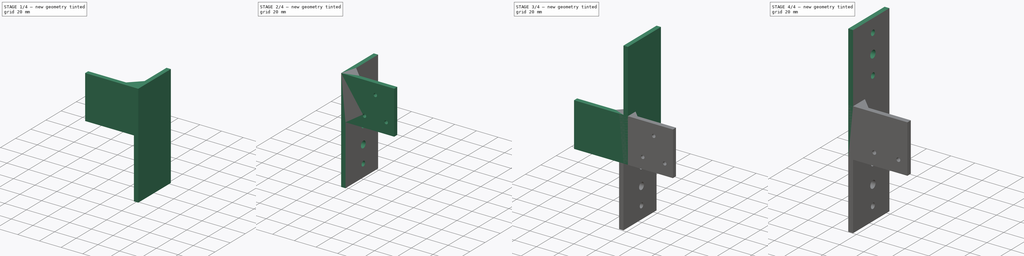
[diagram: build sequence overview — one tinted view per stage of 4, left to right]
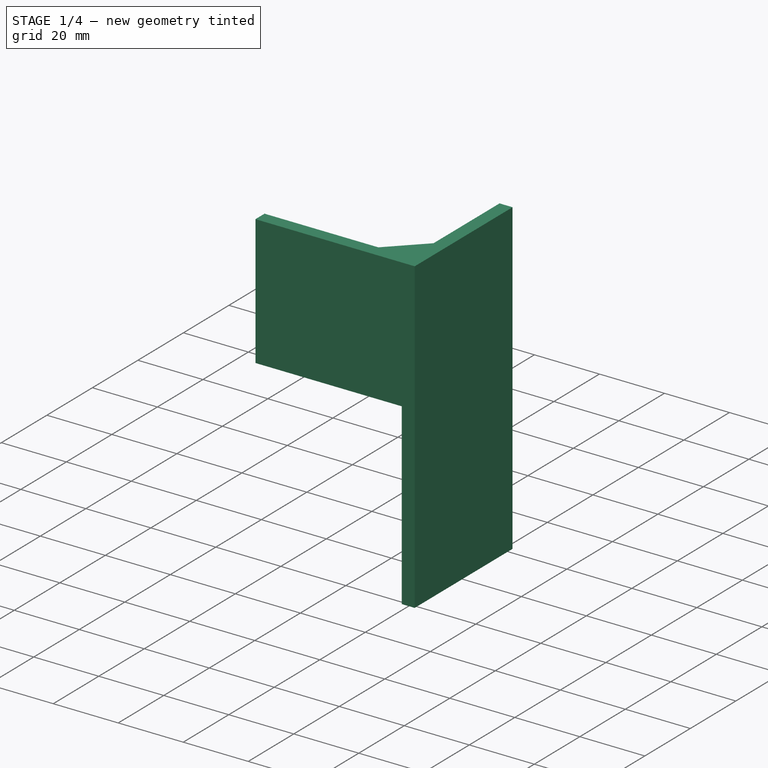
[diagram: stage 1 of 4 — iso view after this stage's code; geometry added in this stage tinted green]
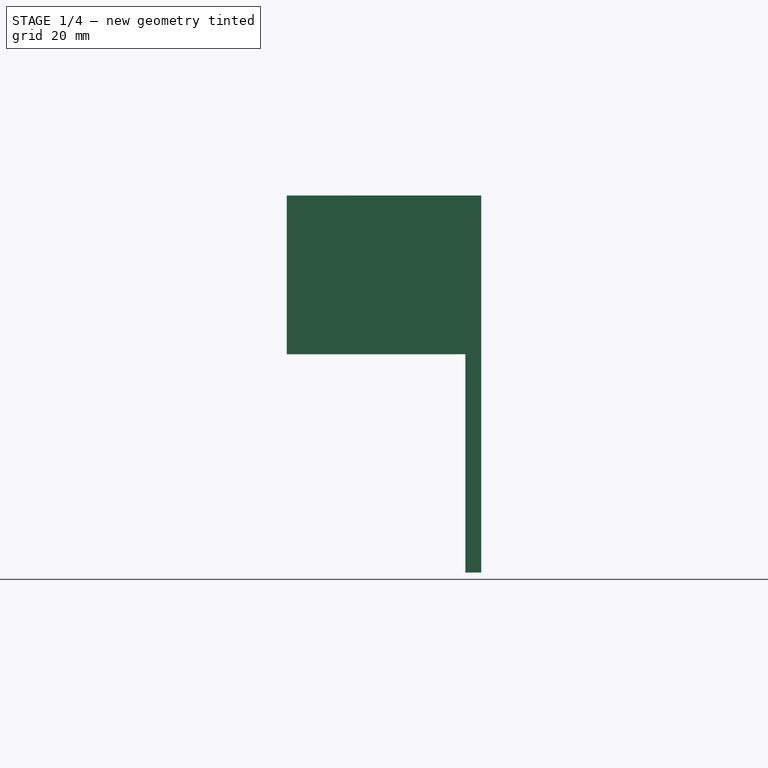
[diagram: stage 1 of 4 — front view after this stage's code; geometry added in this stage tinted green]
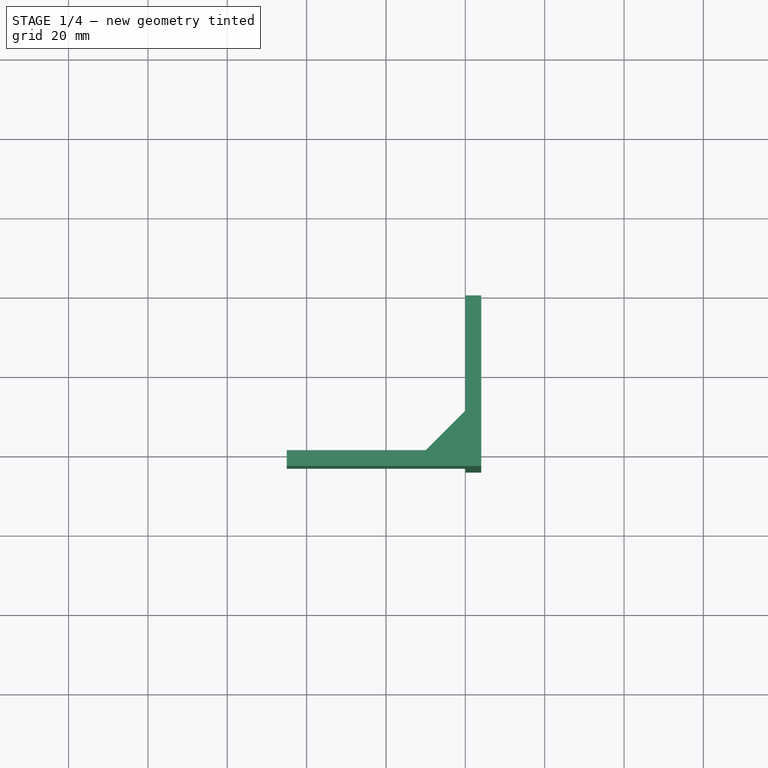
[diagram: stage 1 of 4 — top view after this stage's code; geometry added in this stage tinted green]
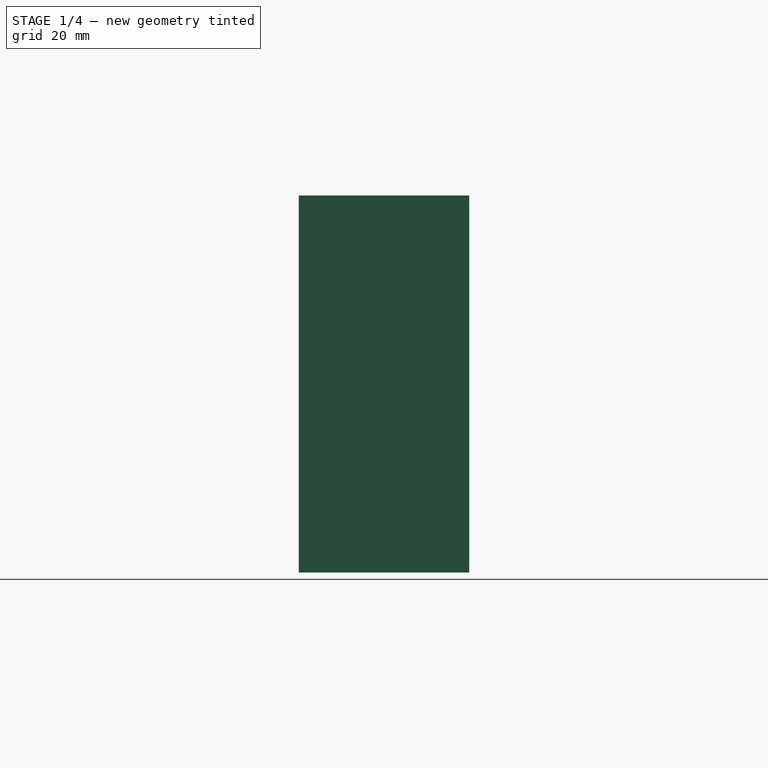
[diagram: stage 1 of 4 — right view after this stage's code; geometry added in this stage tinted green]
FCSTD DOCUMENT  (FreeCAD 1.0R39319 (Git))
Label: BracketsV3
License: All rights reserved
objects: Sketcher::SketchObject×8, PartDesign::Pad×5, PartDesign::Pocket×4, PartDesign::Body×2, Part::Mirroring×2
note: 47 computed .brp shape members not serialized (recipe doc carries the construction recipe); baked Part::Feature solids carry a one-line shape summary decoded from their .brp

FEATURE [PartDesign::Body] BracketBody  label="TopBracketLeftBody"
  AllowCompound = false
  Group = -> [LProfileSketch,LProfilePad,RailExtensionSketch,RailExtensionPad,FrameHolesSketch002,FrameHolesPocket,RailHolesSketch,RailHolesPocket]
  Origin = -> Origin
  Tip = -> RailHolesPocket
FEATURE [Sketcher::SketchObject] BottomLProfileSketch
  ArcFitTolerance = 1e-06
  AttachmentSupport = -> [XY_Plane001]
  FullyConstrained = false
  MakeInternals = false
  MapMode = 5
  sketch-geometry (9):
    g0: LineSegment StartX=-45 StartY=-4 StartZ=0 EndX=-45 EndY=0 EndZ=0
    g1: LineSegment StartX=-45 StartY=0 StartZ=0 EndX=-10 EndY=0 EndZ=0
    g2: LineSegment StartX=-10 StartY=0 StartZ=0 EndX=0 EndY=10 EndZ=0
    g3: LineSegment StartX=0 StartY=10 StartZ=0 EndX=0 EndY=39 EndZ=0
    g4: LineSegment StartX=0 StartY=39 StartZ=0 EndX=4 EndY=39 EndZ=0
    g5: LineSegment StartX=4 StartY=39 StartZ=0 EndX=4 EndY=0 EndZ=0
    g6: LineSegment StartX=4 StartY=0 StartZ=0 EndX=4 EndY=-4 EndZ=0
    g7: LineSegment StartX=4 StartY=-4 StartZ=0 EndX=0 EndY=-4 EndZ=0
    g8: LineSegment StartX=0 StartY=-4 StartZ=0 EndX=-45 EndY=-4 EndZ=0
  constraints (25):
    c: Coincident(g0,g1)
    c: Coincident(g1,g2)
    c: Coincident(g2,g3)
    c: Coincident(g3,g4)
    c: Coincident(g4,g5)
    c: Coincident(g5,g6)
    c: Coincident(g6,g7)
    c: Coincident(g7,g8)
    c: Coincident(g8,g0)
    c: Vertical(g0)
    c: Horizontal(g1)
    c: Vertical(g3)
    c: Horizontal(g4)
    c: Vertical(g5)
    c: Vertical(g6)
    c: Horizontal(g7)
    c: Horizontal(g8)
    c: DistanceX(g0) = -45
    c: DistanceY(g0) = -4
    c: DistanceY(g0,g0) = 4
    c: DistanceY(g4) = 39
    c: DistanceX(g5) = 4
    c: DistanceX(g3,g5) = 4
    c: DistanceX(g1) = -10
    c: DistanceY(g2) = 10
FEATURE [PartDesign::Pad] BottomLProfilePad
  Direction = (0,0,1)
  Length = 40
  Length2 = 10
  Profile = -> BottomLProfileSketch
  Suppressed = false
  Type = 0
FEATURE [PartDesign::Pad] BottomLProfilePad001
  BaseFeature = -> BottomLProfilePad
  Direction = (0,0,1)
  Length = 40
  Length2 = 10
  Profile = -> BottomLProfileSketch
  Refine = true
  Suppressed = false
  Type = 0
FEATURE [Sketcher::SketchObject] BottomRailExtensionSketch
  ArcFitTolerance = 1e-06
  AttachmentOffset = pos=(4,0,0) rot=(0,0,1;3.14159rad)
  AttachmentSupport = -> [BottomLProfilePad001]
  FullyConstrained = true
  MakeInternals = false
  MapMode = 5
  Placement = pos=(4,0,0) rot=(0,-1,0;3.14159rad)
  sketch-geometry (4):
    g0: LineSegment StartX=0 StartY=-4 StartZ=0 EndX=4 EndY=-4 EndZ=0
    g1: LineSegment StartX=4 StartY=-4 StartZ=0 EndX=4 EndY=39 EndZ=0
    g2: LineSegment StartX=4 StartY=39 StartZ=0 EndX=0 EndY=39 EndZ=0
    g3: LineSegment StartX=0 StartY=39 StartZ=0 EndX=0 EndY=-4 EndZ=0
  constraints (12):
    c: Coincident(g0,g1)
    c: Coincident(g1,g2)
    c: Coincident(g2,g3)
    c: Coincident(g3,g0)
    c: Horizontal(g0)
    c: Vertical(g1)
    c: Horizontal(g2)
    c: Vertical(g3)
    c: DistanceX(g0) = 0
    c: DistanceY(g0) = -4
    c: DistanceX(g0) = 4
    c: DistanceY(g1) = 43
FEATURE [PartDesign::Pad] BottomRailExtensionPad
  BaseFeature = -> BottomLProfilePad001
  Direction = (0,0,-1)
  Length = 55
  Length2 = 10
  Profile = -> BottomRailExtensionSketch
  Refine = true
  Suppressed = false
  Type = 0
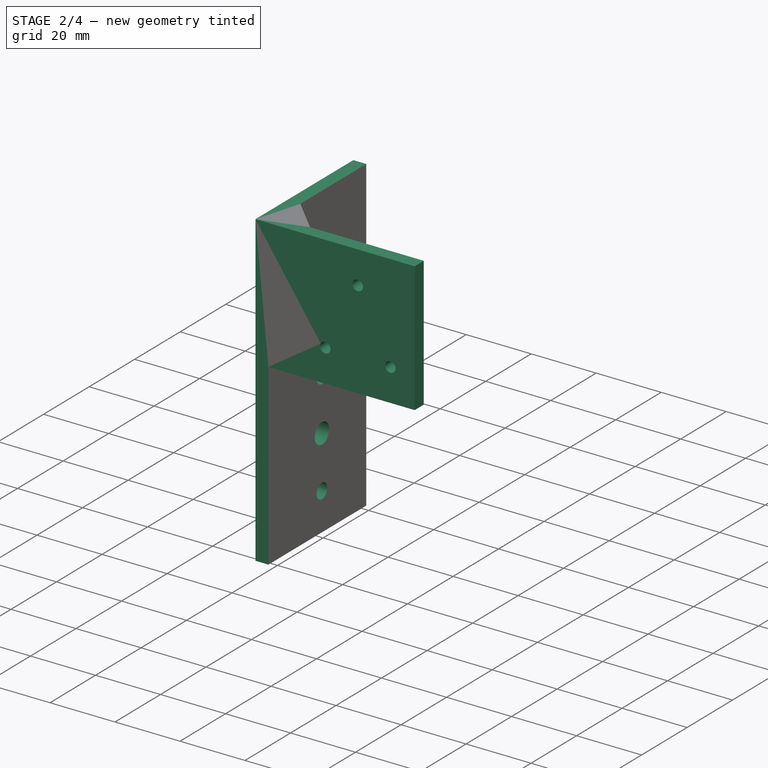
[diagram: stage 2 of 4 — iso view after this stage's code; geometry added in this stage tinted green]
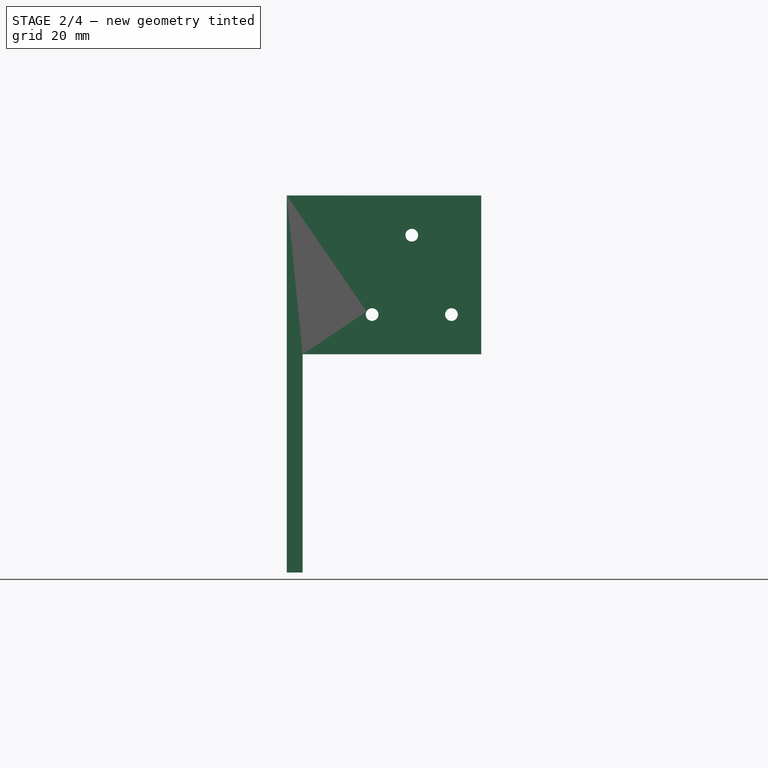
[diagram: stage 2 of 4 — front view after this stage's code; geometry added in this stage tinted green]
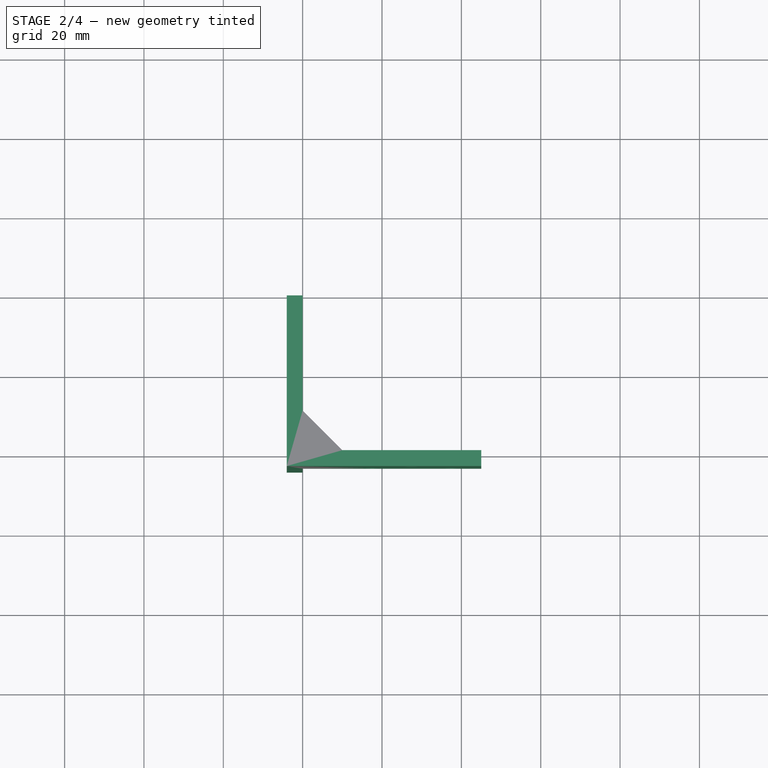
[diagram: stage 2 of 4 — top view after this stage's code; geometry added in this stage tinted green]
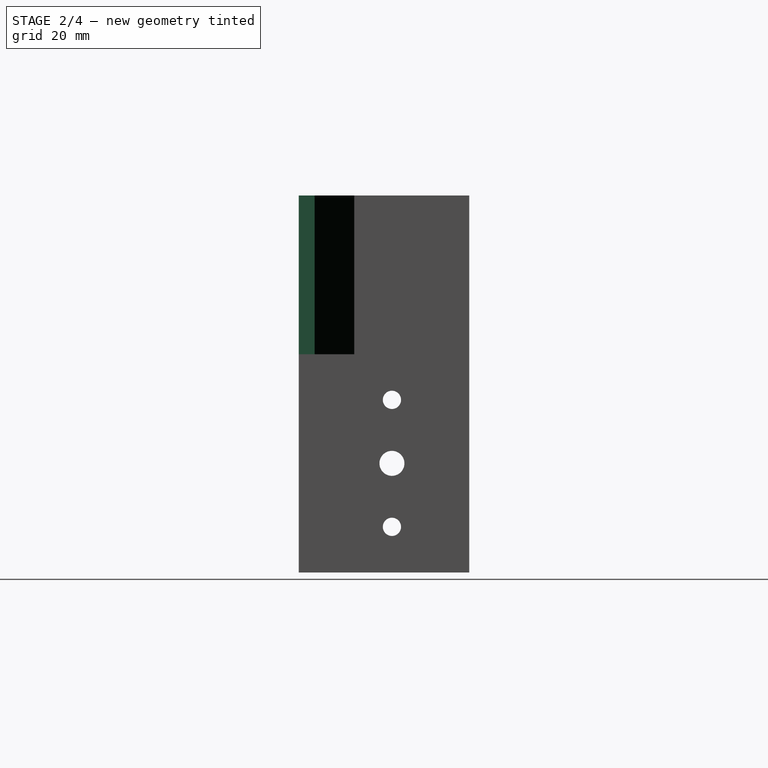
[diagram: stage 2 of 4 — right view after this stage's code; geometry added in this stage tinted green]
FEATURE [Sketcher::SketchObject] BottomFrameHolesSketch
  ArcFitTolerance = 1e-06
  AttachmentSupport = -> [BottomRailExtensionPad]
  ExternalGeometry = -> [BottomRailExtensionPad]
  FullyConstrained = true
  MakeInternals = false
  MapMode = 5
  Placement = pos=(0,0,0) rot=(0,0.707107,0.707107;3.14159rad)
  sketch-geometry (3):
    g0: Circle CenterX=17.5 CenterY=10 CenterZ=0 NormalX=0 NormalY=0 NormalZ=1 AngleXU=0 Radius=1.6
    g1: Circle CenterX=37.5 CenterY=10 CenterZ=0 NormalX=0 NormalY=0 NormalZ=1 AngleXU=0 Radius=1.6
    g2: Circle CenterX=27.5 CenterY=30 CenterZ=0 NormalX=0 NormalY=0 NormalZ=1 AngleXU=0 Radius=1.6
  constraints (9):
    c: DistanceY(g-3,g0) = 10
    c: DistanceY(g-3,g1) = 10
    c: DistanceY(g-3,g2) = 30
    c: DistanceX(g-4,g0) = -27.5
    c: DistanceX(g-4,g1) = -7.5
    c: DistanceX(g-4,g2) = -17.5
    c: Radius(g0) = 1.6
    c: Radius(g1) = 1.6
    c: Radius(g2) = 1.6
FEATURE [PartDesign::Pocket] BottomFrameHolesPocket
  BaseFeature = -> BottomRailExtensionPad
  Direction = (0,-1,2e-16)
  Length = 5
  Length2 = 5
  Profile = -> BottomFrameHolesSketch
  Suppressed = false
  Type = 1
FEATURE [Sketcher::SketchObject] BottomRailHolesSketch
  ArcFitTolerance = 1e-06
  AttachmentSupport = -> [BottomFrameHolesPocket]
  ExternalGeometry = -> [BottomFrameHolesPocket]
  FullyConstrained = true
  MakeInternals = false
  MapMode = 5
  Placement = pos=(4,0,0) rot=(0.57735,0.57735,0.57735;2.0944rad)
  sketch-geometry (3):
    g0: Circle CenterX=19.5 CenterY=-11.5 CenterZ=0 NormalX=0 NormalY=0 NormalZ=1 AngleXU=0 Radius=2.3
    g1: Circle CenterX=19.5 CenterY=-27.5 CenterZ=0 NormalX=0 NormalY=0 NormalZ=1 AngleXU=0 Radius=3.15
    g2: Circle CenterX=19.5 CenterY=-43.5 CenterZ=0 NormalX=0 NormalY=0 NormalZ=1 AngleXU=0 Radius=2.3
  constraints (9):
    c: DistanceY(g-3,g0) = 43.5
    c: DistanceY(g-3,g1) = 27.5
    c: DistanceY(g-3,g2) = 11.5
    c: DistanceX(g-4,g0) = -19.5
    c: DistanceX(g-4,g1) = -19.5
    c: DistanceX(g-4,g2) = -19.5
    c: Radius(g0) = 2.3
    c: Radius(g1) = 3.15
    c: Radius(g2) = 2.3
FEATURE [PartDesign::Pocket] BottomRailHolesPocket
  BaseFeature = -> BottomFrameHolesPocket
  Direction = (-1,0,0)
  Length = 5
  Length2 = 5
  Profile = -> BottomRailHolesSketch
  Suppressed = false
  Type = 1
FEATURE [Part::Mirroring] BottomBracketRight
  Base = (0,0,0)
  Normal = (1,0,0)
  Source = -> BottomBracketLeftBody
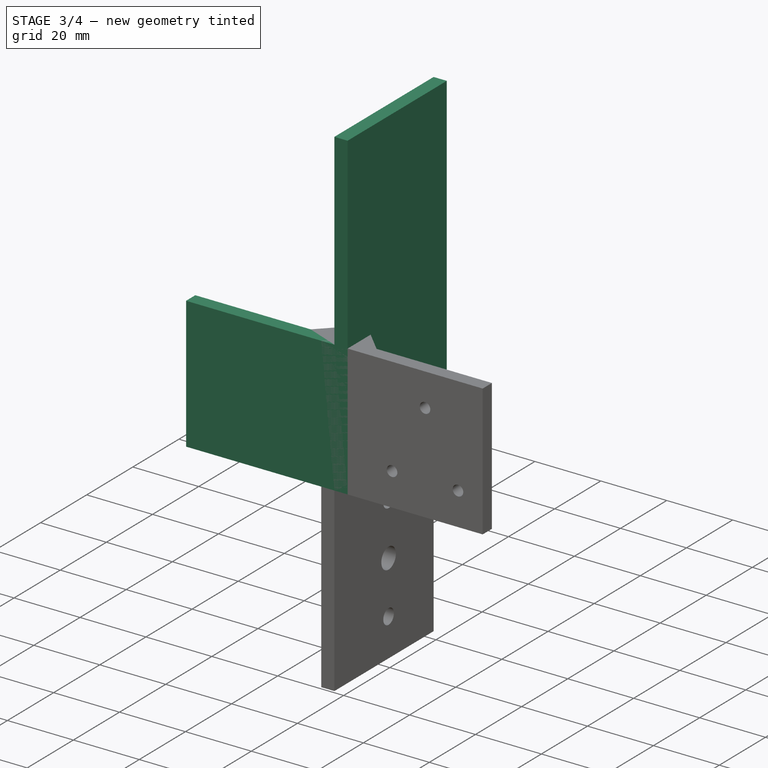
[diagram: stage 3 of 4 — iso view after this stage's code; geometry added in this stage tinted green]
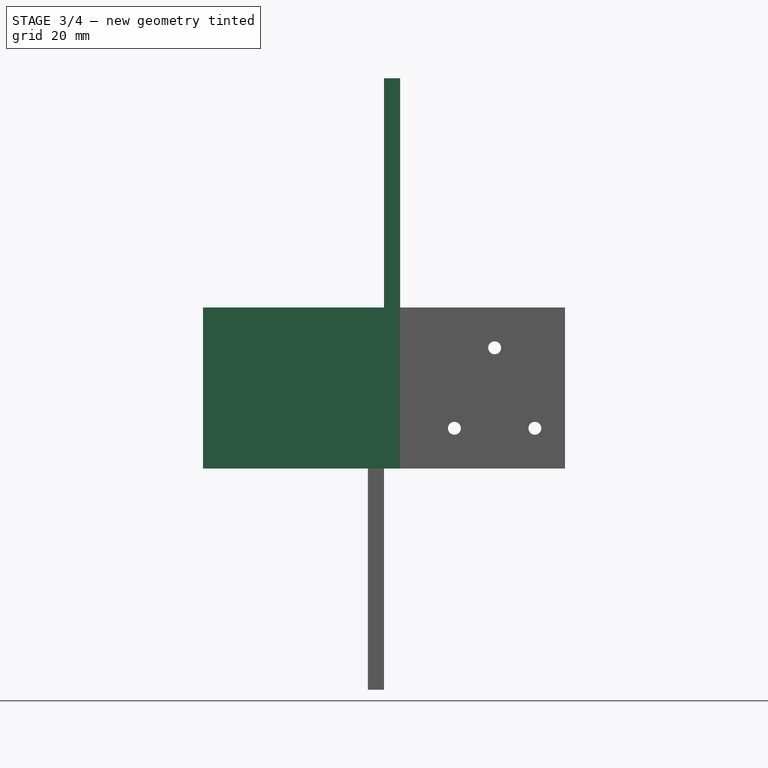
[diagram: stage 3 of 4 — front view after this stage's code; geometry added in this stage tinted green]
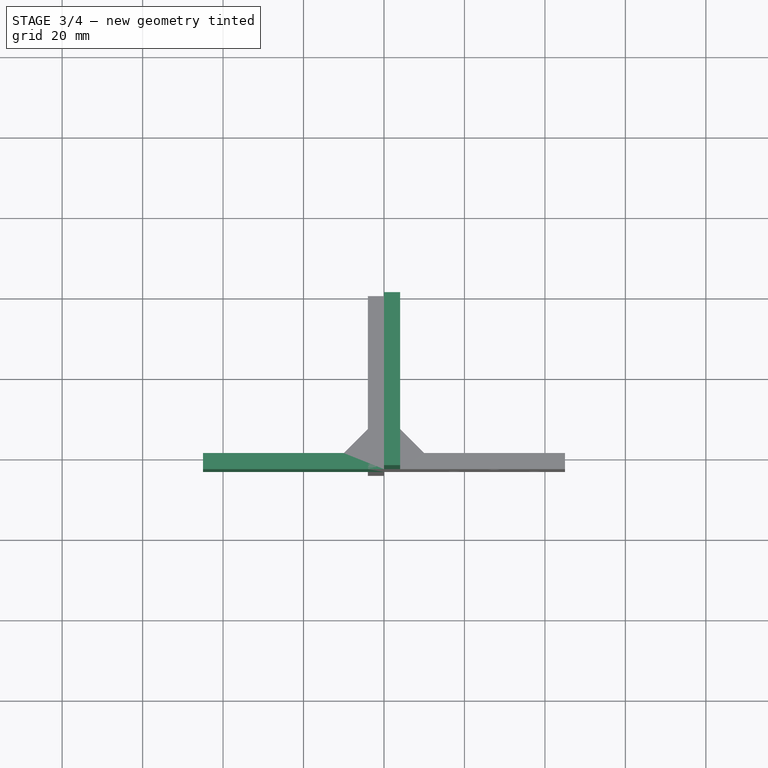
[diagram: stage 3 of 4 — top view after this stage's code; geometry added in this stage tinted green]
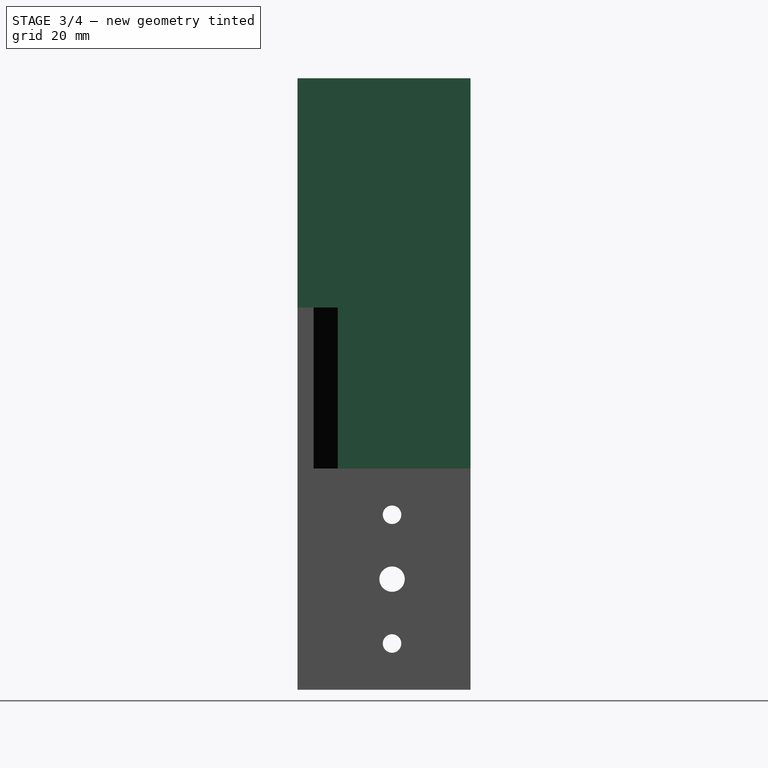
[diagram: stage 3 of 4 — right view after this stage's code; geometry added in this stage tinted green]
FEATURE [Sketcher::SketchObject] LProfileSketch
  ArcFitTolerance = 1e-06
  AttachmentSupport = -> [XY_Plane]
  FullyConstrained = true
  MakeInternals = false
  MapMode = 5
  sketch-geometry (9):
    g0: LineSegment StartX=-45 StartY=-4 StartZ=0 EndX=-45 EndY=0 EndZ=0
    g1: LineSegment StartX=-45 StartY=0 StartZ=0 EndX=-10 EndY=0 EndZ=0
    g2: LineSegment StartX=-10 StartY=0 StartZ=0 EndX=0 EndY=10 EndZ=0
    g3: LineSegment StartX=0 StartY=10 StartZ=0 EndX=0 EndY=39 EndZ=0
    g4: LineSegment StartX=0 StartY=39 StartZ=0 EndX=4 EndY=39 EndZ=0
    g5: LineSegment StartX=4 StartY=39 StartZ=0 EndX=4 EndY=0 EndZ=0
    g6: LineSegment StartX=4 StartY=0 StartZ=0 EndX=4 EndY=-4 EndZ=0
    g7: LineSegment StartX=4 StartY=-4 StartZ=0 EndX=0 EndY=-4 EndZ=0
    g8: LineSegment StartX=0 StartY=-4 StartZ=0 EndX=-45 EndY=-4 EndZ=0
  constraints (27):
    c: Coincident(g0,g1)
    c: Coincident(g1,g2)
    c: Coincident(g2,g3)
    c: Coincident(g3,g4)
    c: Coincident(g4,g5)
    c: Coincident(g5,g6)
    c: Coincident(g6,g7)
    c: Coincident(g7,g8)
    c: Coincident(g8,g0)
    c: Vertical(g0)
    c: Horizontal(g1)
    c: Vertical(g3)
    c: Horizontal(g4)
    c: Vertical(g5)
    c: Vertical(g6)
    c: Horizontal(g7)
    c: Horizontal(g8)
    c: DistanceX(g0) = -45
    c: DistanceY(g0) = -4
    c: Distance(g0) = 4
    c: Distance(g8) = 45
    c: Distance(g5) = 39
    c: Distance(g4) = 4
    c: Distance(g1) = 35
    c: Distance(g3) = 29
    c: Distance(g6) = 4
    c: Distance(g7) = 4
FEATURE [PartDesign::Pad] LProfilePad
  Direction = (0,0,1)
  Length = 40
  Length2 = 10
  Profile = -> LProfileSketch
  Refine = true
  Suppressed = false
  Type = 0
FEATURE [Sketcher::SketchObject] RailExtensionSketch
  ArcFitTolerance = 1e-06
  AttachmentSupport = -> [LProfilePad]
  FullyConstrained = true
  MakeInternals = false
  MapMode = 5
  Placement = pos=(0,0,40) rot=(0,0,1;0rad)
  sketch-geometry (4):
    g0: LineSegment StartX=0 StartY=-4 StartZ=0 EndX=4 EndY=-4 EndZ=0
    g1: LineSegment StartX=4 StartY=-4 StartZ=0 EndX=4 EndY=39 EndZ=0
    g2: LineSegment StartX=4 StartY=39 StartZ=0 EndX=0 EndY=39 EndZ=0
    g3: LineSegment StartX=0 StartY=39 StartZ=0 EndX=0 EndY=-4 EndZ=0
  constraints (12):
    c: Coincident(g0,g1)
    c: Coincident(g1,g2)
    c: Coincident(g2,g3)
    c: Coincident(g3,g0)
    c: Horizontal(g0)
    c: Vertical(g1)
    c: Horizontal(g2)
    c: Vertical(g3)
    c: DistanceX(g0) = 0
    c: DistanceY(g0) = -4
    c: Distance(g0) = 4
    c: Distance(g1) = 43
FEATURE [PartDesign::Pad] RailExtensionPad
  BaseFeature = -> LProfilePad
  Direction = (0,0,1)
  Length = 57
  Length2 = 10
  Profile = -> RailExtensionSketch
  Refine = true
  Suppressed = false
  Type = 0
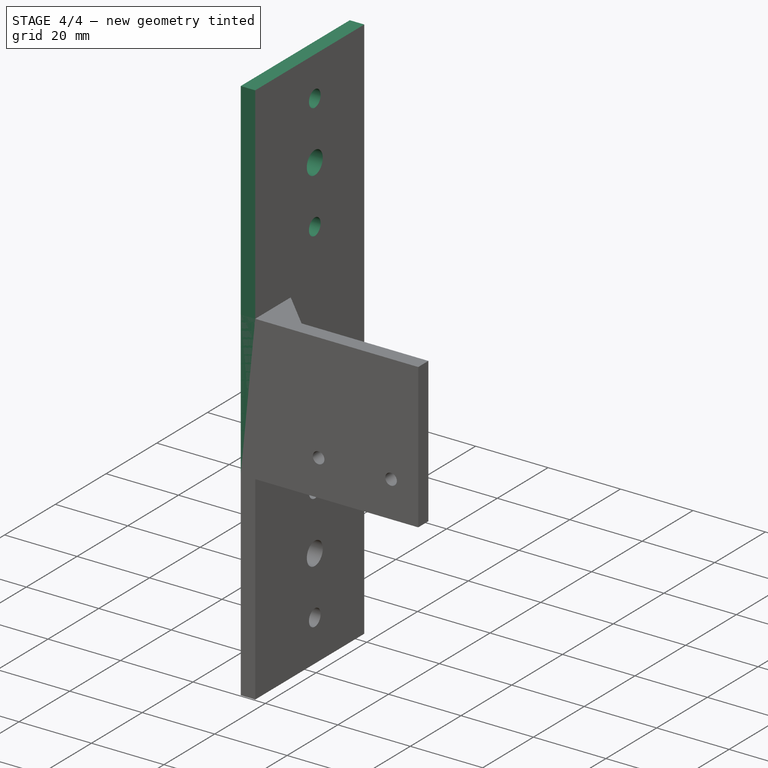
[diagram: stage 4 of 4 — iso view after this stage's code; geometry added in this stage tinted green]
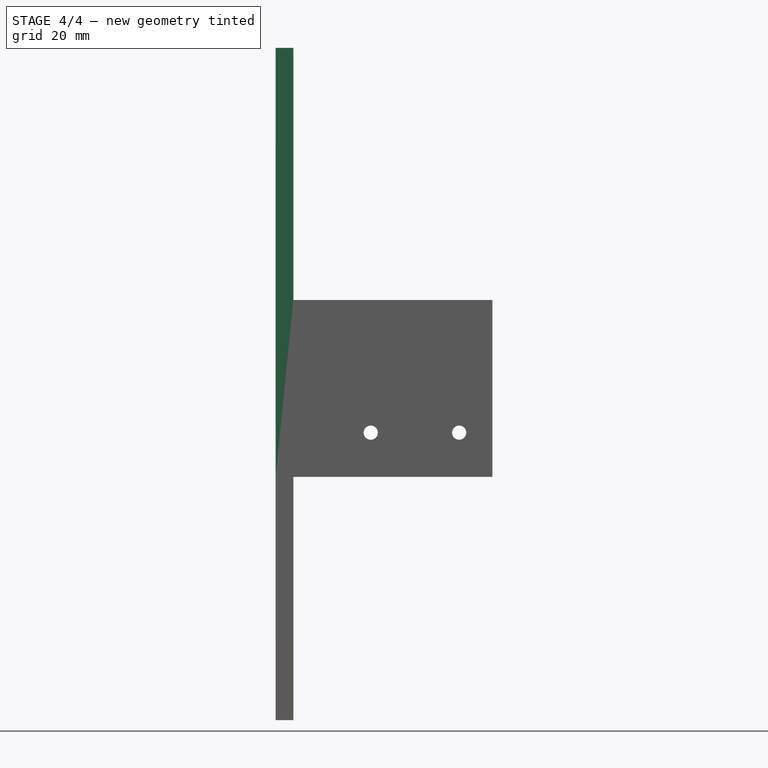
[diagram: stage 4 of 4 — front view after this stage's code; geometry added in this stage tinted green]
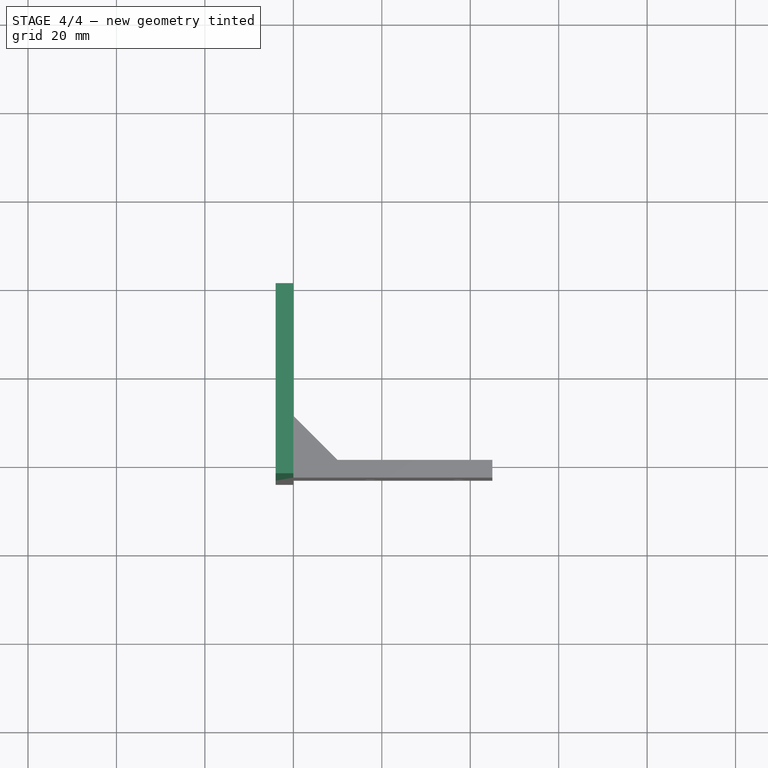
[diagram: stage 4 of 4 — top view after this stage's code; geometry added in this stage tinted green]
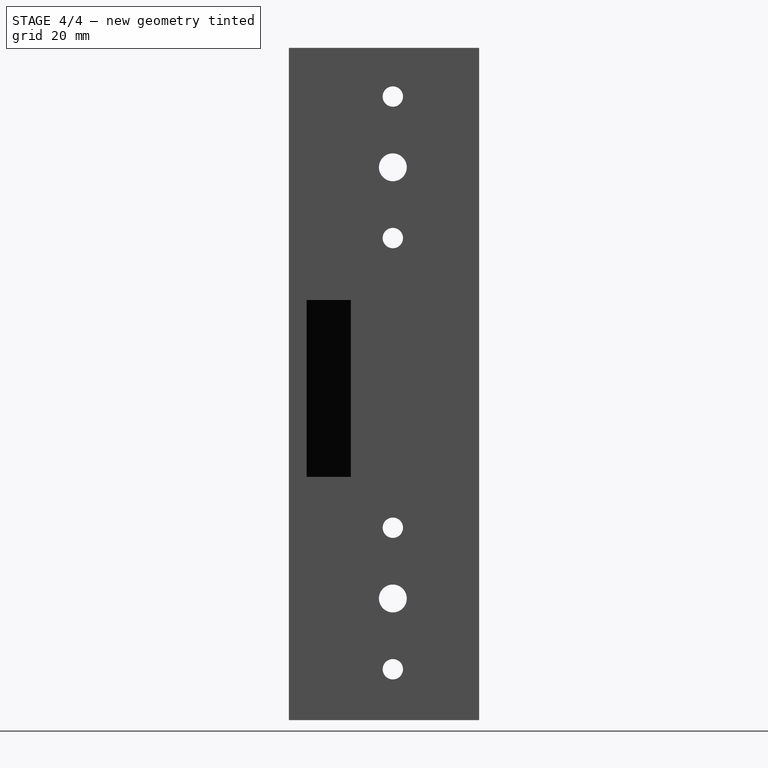
[diagram: stage 4 of 4 — right view after this stage's code; geometry added in this stage tinted green]
FEATURE [Sketcher::SketchObject] FrameHolesSketch002
  ArcFitTolerance = 1e-06
  AttachmentOffset = pos=(0,10,0) rot=(0,0,1;0rad)
  AttachmentSupport = -> [RailExtensionPad]
  ExternalGeometry = -> [LProfilePad]
  FullyConstrained = true
  MakeInternals = false
  MapMode = 5
  Placement = pos=(0,-4,10) rot=(1,0,0;1.5708rad)
  sketch-geometry (2):
    g0: Circle CenterX=-37.5 CenterY=0 CenterZ=0 NormalX=0 NormalY=0 NormalZ=1 AngleXU=0 Radius=1.6
    g1: Circle CenterX=-17.5 CenterY=0 CenterZ=0 NormalX=0 NormalY=0 NormalZ=1 AngleXU=0 Radius=1.6
  constraints (6):
    c: DistanceX(g-3,g0) = 7.5
    c: DistanceX(g-3,g1) = 27.5
    c: DistanceY(g-4,g0) = 10
    c: DistanceY(g-4,g1) = 10
    c: Radius(g0) = 1.6
    c: Radius(g1) = 1.6
FEATURE [PartDesign::Pocket] FrameHolesPocket
  BaseFeature = -> RailExtensionPad
  Direction = (0,1,-2e-16)
  Length = 5
  Length2 = 5
  Profile = -> FrameHolesSketch002
  Suppressed = false
  Type = 1
FEATURE [Sketcher::SketchObject] RailHolesSketch
  ArcFitTolerance = 1e-06
  AttachmentSupport = -> [RailExtensionPad]
  ExternalGeometry = -> [RailExtensionPad]
  FullyConstrained = true
  MakeInternals = false
  MapMode = 5
  Placement = pos=(0,0,0) rot=(0.57735,-0.57735,-0.57735;2.0944rad)
  sketch-geometry (3):
    g0: Circle CenterX=-19.5 CenterY=54 CenterZ=0 NormalX=0 NormalY=0 NormalZ=1 AngleXU=0 Radius=2.3
    g1: Circle CenterX=-19.5 CenterY=70 CenterZ=0 NormalX=0 NormalY=0 NormalZ=1 AngleXU=0 Radius=3.15
    g2: Circle CenterX=-19.5 CenterY=86 CenterZ=0 NormalX=0 NormalY=0 NormalZ=1 AngleXU=0 Radius=2.3
  constraints (9):
    c: DistanceY(g-3,g0) = 54
    c: DistanceY(g-3,g1) = 70
    c: DistanceY(g-3,g2) = 86
    c: DistanceX(g-4,g0) = 19.5
    c: DistanceX(g-4,g1) = 19.5
    c: DistanceX(g-4,g2) = 19.5
    c: Radius(g0) = 2.3
    c: Radius(g1) = 3.15
    c: Radius(g2) = 2.3
FEATURE [PartDesign::Pocket] RailHolesPocket
  BaseFeature = -> FrameHolesPocket
  Direction = (1,0,0)
  Length = 5
  Length2 = 5
  Profile = -> RailHolesSketch
  Suppressed = false
  Type = 1
FEATURE [PartDesign::Body] BottomBracketLeftBody
  AllowCompound = false
  Group = -> [BottomLProfileSketch,BottomLProfilePad,BottomLProfilePad001,BottomRailExtensionPad,BottomRailExtensionSketch,BottomFrameHolesSketch,BottomFrameHolesPocket,BottomRailHolesSketch,BottomRailHolesPocket]
  Origin = -> Origin001
  Tip = -> BottomRailHolesPocket
FEATURE [Part::Mirroring] TopBracketRight
  Base = (0,0,0)
  Normal = (1,0,0)
  Source = -> BracketBody
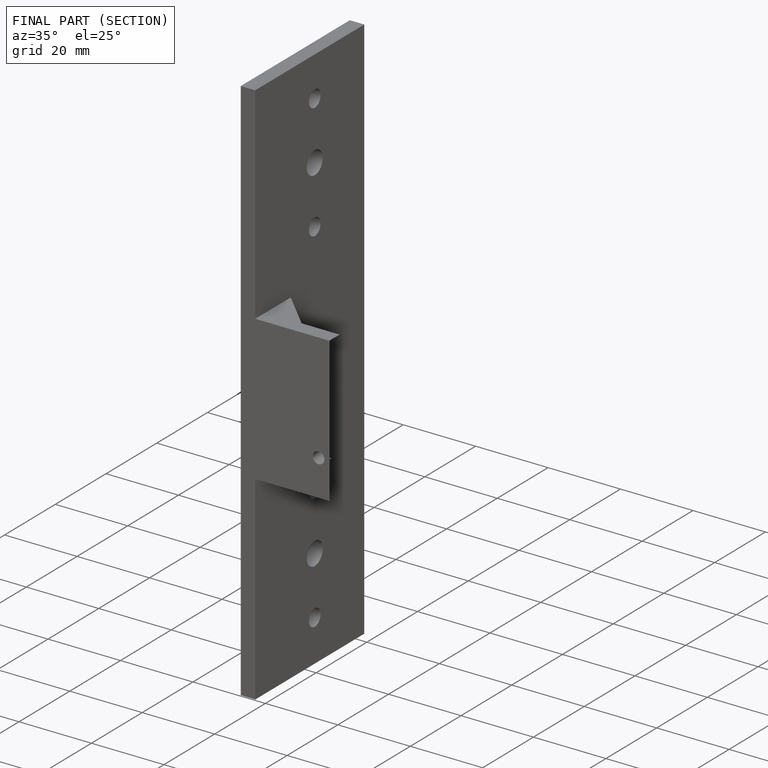
[diagram: finished part — half-section view (interior)]
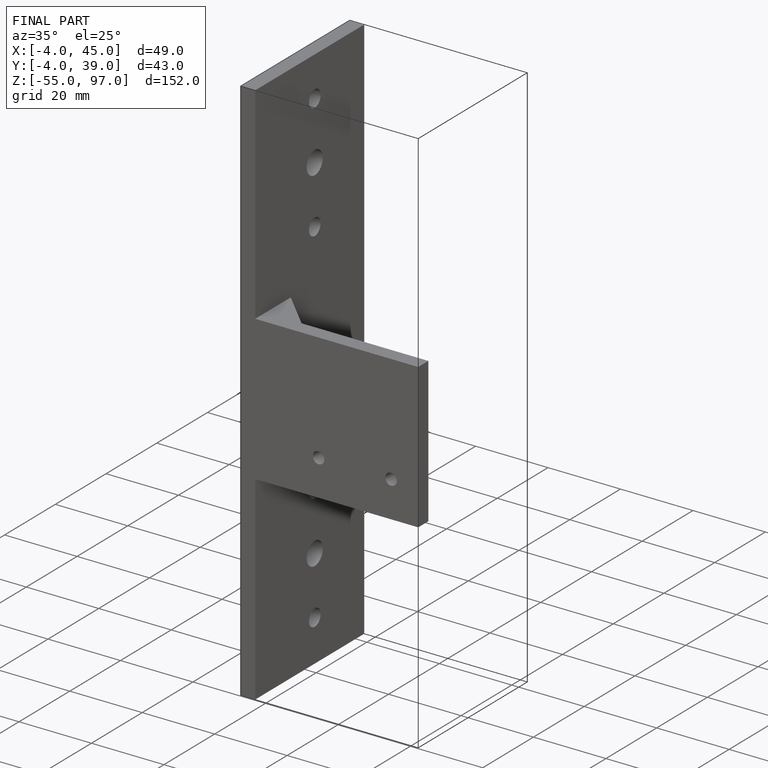
[diagram: finished part — iso view with bounding-box wireframe]
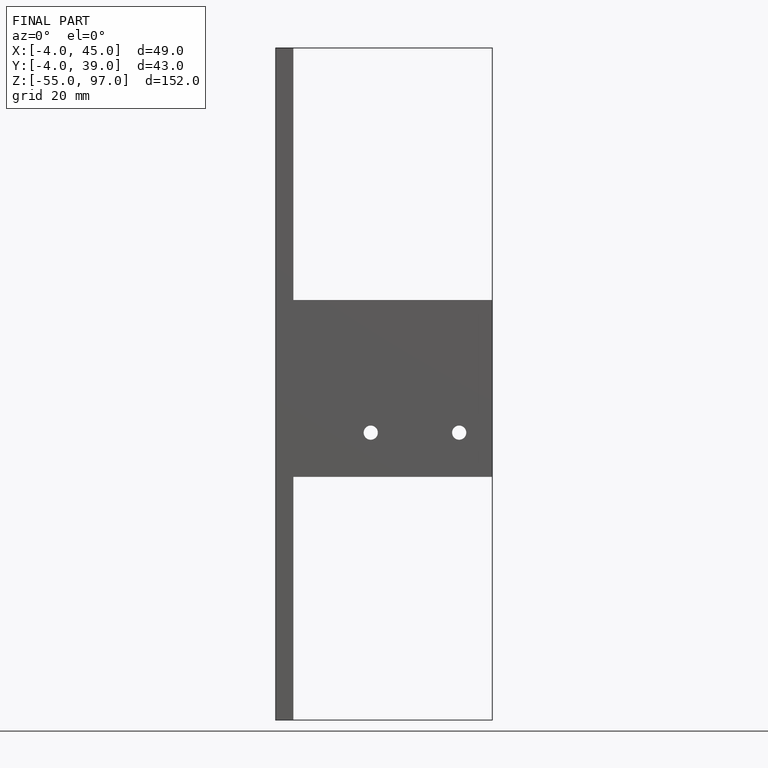
[diagram: finished part — front view with bounding-box wireframe]
